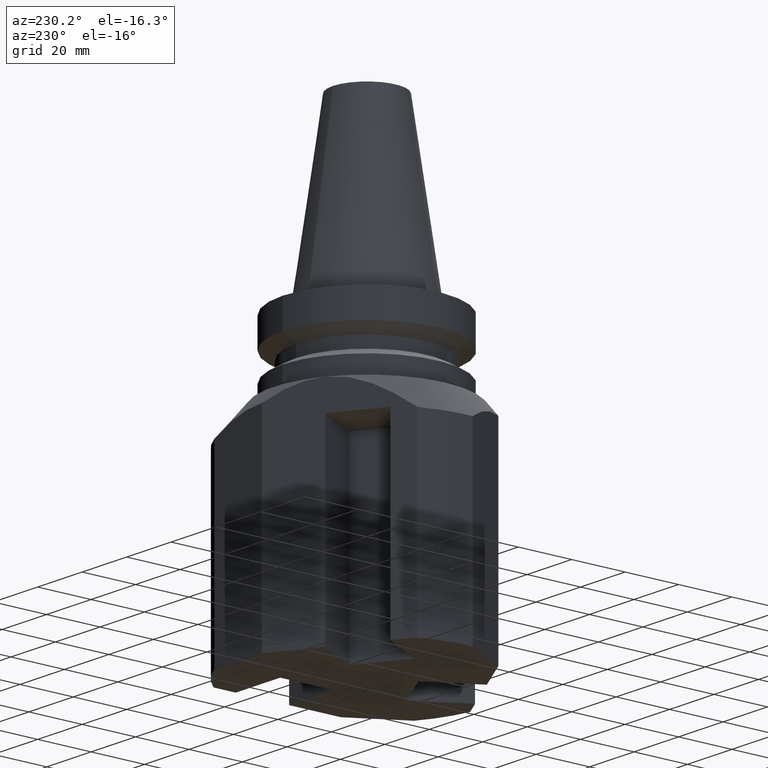
[diagram: clean part render]
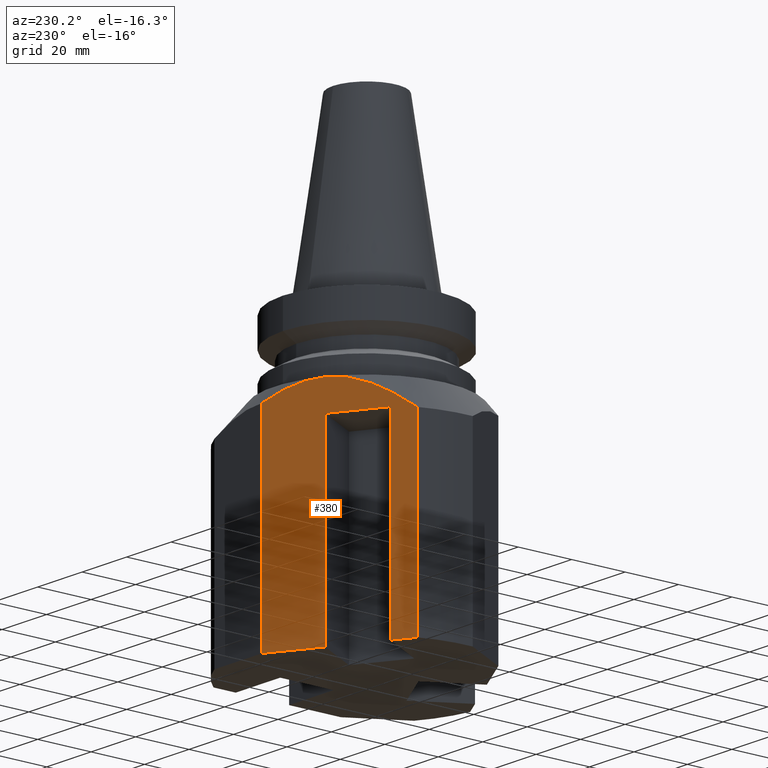
[diagram: same view with one face highlighted and labeled with its STEP entity id]
A machine part, auxiliary view. The second image highlights one B-rep face of the part: STEP entity #380.
In plain terms, the highlighted planar face has unit normal (0.5, -0.866, -0).
Its self-contained STEP definition (entity closure, byte-faithful):
#147=EDGE_CURVE('Unnamed[1]',#439,#440,#441,.T.);
#151=EDGE_CURVE('Unnamed[1]',#447,#448,#449,.T.);
#153=EDGE_CURVE('Unnamed[1]',#448,#451,#452,.T.);
#211=EDGE_CURVE('Unnamed[1]',#539,#473,#540,.T.);
#218=EDGE_CURVE('Unnamed[1]',#432,#550,#551,.T.);
#233=EDGE_CURVE('Unnamed[1]',#573,#439,#574,.T.);
#315=EDGE_CURVE('Unnamed[1]',#473,#440,#678,.T.);
#317=EDGE_CURVE('Unnamed[1]',#550,#539,#680,.T.);
#341=EDGE_CURVE('Unnamed[1]',#451,#432,#710,.T.);
#380=ADVANCED_FACE('Unnamed[1]',(#761),#762,.F.);
#390=EDGE_CURVE('Unnamed[1]',#447,#573,#772,.T.);
#432=VERTEX_POINT('',#812);
#439=VERTEX_POINT('',#822);
#440=VERTEX_POINT('',#823);
#441=LINE('',#824,#825);
#447=VERTEX_POINT('',#834);
#448=VERTEX_POINT('',#835);
#449=LINE('',#836,#837);
#451=VERTEX_POINT('',#840);
#452=LINE('',#841,#842);
#473=VERTEX_POINT('',#882);
#539=VERTEX_POINT('',#969);
#540=LINE('',#970,#971);
#550=VERTEX_POINT('',#985);
#551=LINE('',#986,#987);
#573=VERTEX_POINT('',#1028);
#574=LINE('',#1029,#1030);
#678=LINE('',#1213,#1214);
#680=(B_SPLINE_CURVE(2,(#1218,#1219,#1220),.UNSPECIFIED.,.F.,.F.)B_SPLINE_CURVE_WITH_KNOTS((3,3),(0.0,31.0884589206284),.UNSPECIFIED.)RATIONAL_B_SPLINE_CURVE((1.0,1.06899021366133,1.0))BOUNDED_CURVE()REPRESENTATION_ITEM('')GEOMETRIC_REPRESENTATION_ITEM()CURVE());
#710=(B_SPLINE_CURVE(2,(#1279,#1280,#1281),.UNSPECIFIED.,.F.,.F.)B_SPLINE_CURVE_WITH_KNOTS((3,3),(0.0,31.0884589206284),.UNSPECIFIED.)RATIONAL_B_SPLINE_CURVE((1.0,1.06899021366133,1.0))BOUNDED_CURVE()REPRESENTATION_ITEM('')GEOMETRIC_REPRESENTATION_ITEM()CURVE());
#761=FACE_OUTER_BOUND('',#1358,.T.);
#762=PLANE('',#1359);
#772=LINE('',#1386,#1387);
#812=CARTESIAN_POINT('',(-17.4912161996077,30.3159604619747,-28.9999997615812));
#822=CARTESIAN_POINT('',(-34.8205080756889,20.3108891324547,-39.9999999999998));
#823=CARTESIAN_POINT('',(-34.8205080756889,20.3108891324547,-110.0));
#824=CARTESIAN_POINT('',(-34.820508075689,20.3108891324547,-279.0));
#825=VECTOR('',#1431,1.0);
#834=CARTESIAN_POINT('',(-17.4999999999995,30.310889132454,-110.0));
#835=CARTESIAN_POINT('',(-0.717967697240159,40.0000000000001,-110.0));
#836=CARTESIAN_POINT('',(-14.5568233849796,32.0101329434082,-110.0));
#837=VECTOR('',#1433,1.0);
#840=CARTESIAN_POINT('',(-0.717967697240117,40.0000000000001,-34.96644493123));
#841=CARTESIAN_POINT('',(-0.717967697240252,40.0000000000001,-279.0));
#842=VECTOR('',#1434,1.0);
#882=CARTESIAN_POINT('',(-41.9948974278317,16.1687535087243,-110.0));
#969=CARTESIAN_POINT('',(-41.9948974278319,16.1687535087241,-40.9175350302167));
#970=CARTESIAN_POINT('',(-41.994897427832,16.1687535087241,-75.4587675151082));
#971=VECTOR('',#1549,1.0);
#985=CARTESIAN_POINT('',(-17.5087838003882,30.3058178029351,-28.9999997615812));
#986=CARTESIAN_POINT('',(-12.2293799532182,33.3538830352591,-28.9999997615812));
#987=VECTOR('',#1560,1.0);
#1028=CARTESIAN_POINT('',(-17.4999999999994,30.310889132454,-39.9999999999998));
#1029=CARTESIAN_POINT('',(-23.7583433001901,26.6976329434083,-39.9999999999998));
#1030=VECTOR('',#1566,1.0);
#1213=CARTESIAN_POINT('',(-14.5568233849796,32.0101329434082,-110.0));
#1214=VECTOR('',#1677,1.0);
#1218=CARTESIAN_POINT('',(-17.5087838004105,30.3058178029222,-28.9999997615812));
#1219=CARTESIAN_POINT('',(-28.2214587654451,24.1208520281192,-29.0042718238169));
#1220=CARTESIAN_POINT('',(-41.9948974278793,16.1687535086968,-40.9175350302576));
#1279=CARTESIAN_POINT('',(6.9948974278834,44.453024756213,-40.9175350302577));
#1280=CARTESIAN_POINT('',(-6.77854123455082,36.5009262367906,-29.0042718238169));
#1281=CARTESIAN_POINT('',(-17.4912161995854,30.3159604619876,-28.9999997615812));
#1358=EDGE_LOOP('',(#1790,#1791,#1792,#1793,#1794,#1795,#1796,#1797,#1798,#1799));
#1359=AXIS2_PLACEMENT_3D('',#1800,#1801,#1802);
#1386=CARTESIAN_POINT('',(-17.4999999999996,30.310889132454,-279.0));
#1387=VECTOR('',#1806,1.0);
#1431=DIRECTION('',(-5.51091059616309E-016,-1.22464679914735E-016,-1.0));
#1433=DIRECTION('',(0.866025403784461,0.499999999999961,-2.74906859752594E-015));
#1434=DIRECTION('',(5.51091059616309E-016,1.22464679914735E-016,1.0));
#1549=DIRECTION('',(-5.51091059616309E-016,-2.6993447194459E-016,-1.0));
#1560=DIRECTION('',(-0.866025403784461,-0.499999999999961,5.38491197383583E-016));
#1566=DIRECTION('',(-0.866025403784461,-0.499999999999961,5.38491197383583E-016));
#1677=DIRECTION('',(0.866025403784461,0.499999999999961,-2.74906859752594E-015));
#1790=ORIENTED_EDGE('',*,*,#147,.T.);
#1791=ORIENTED_EDGE('',*,*,#315,.F.);
#1792=ORIENTED_EDGE('',*,*,#211,.F.);
#1793=ORIENTED_EDGE('',*,*,#317,.F.);
#1794=ORIENTED_EDGE('',*,*,#218,.F.);
#1795=ORIENTED_EDGE('',*,*,#341,.F.);
#1796=ORIENTED_EDGE('',*,*,#153,.F.);
#1797=ORIENTED_EDGE('',*,*,#151,.F.);
#1798=ORIENTED_EDGE('',*,*,#390,.T.);
#1799=ORIENTED_EDGE('',*,*,#233,.T.);
#1800=CARTESIAN_POINT('',(-21.356432562536,28.0843767543622,-279.0));
#1801=DIRECTION('',(0.499999999999961,-0.866025403784461,-1.6948800593564E-016));
#1802=DIRECTION('',(0.866025403784461,0.499999999999961,-5.38491197383583E-016));
#1806=DIRECTION('',(5.51091059616309E-016,1.22464679914735E-016,1.0));